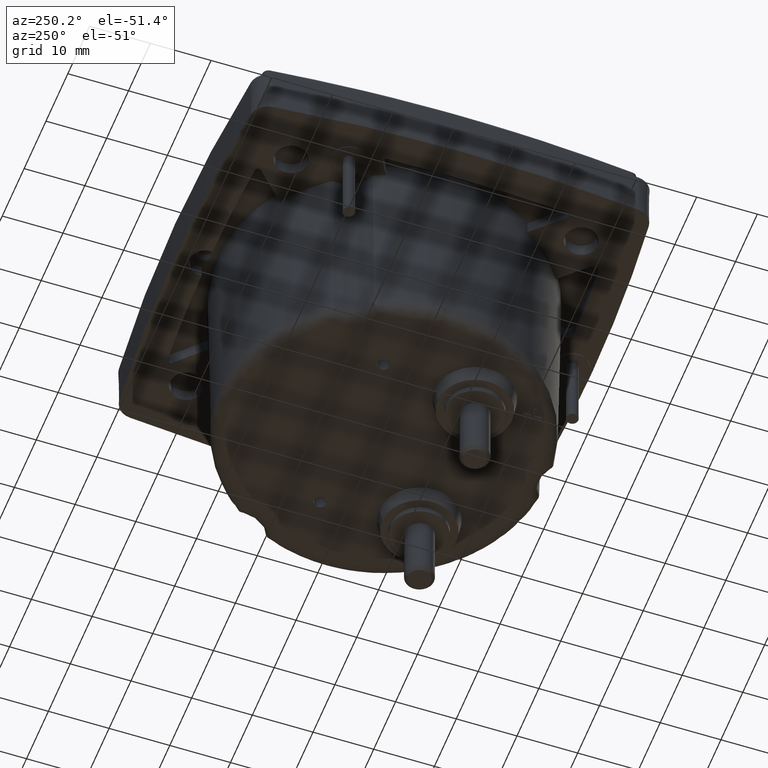
[diagram: clean part render]
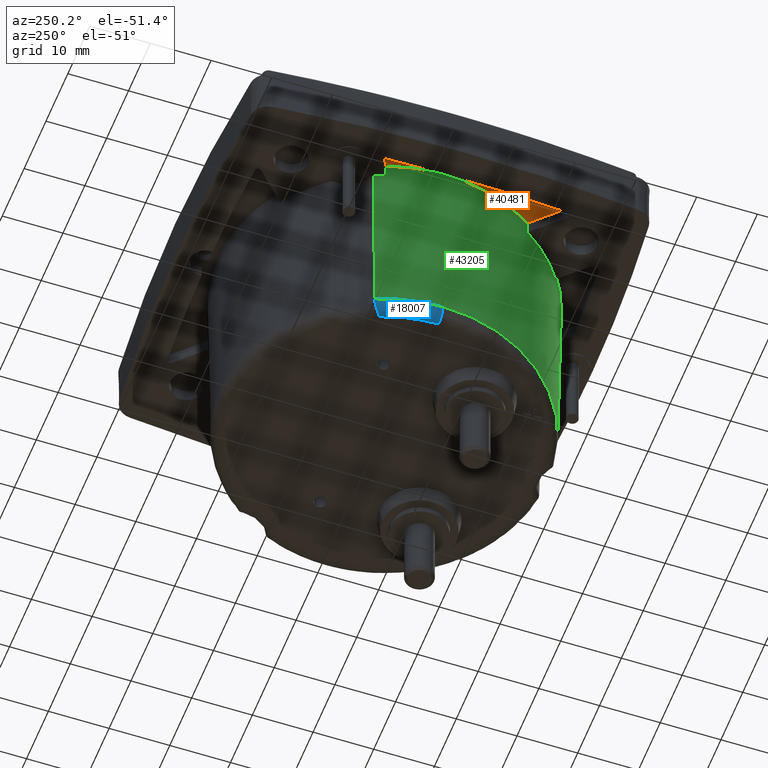
[diagram: same view with three faces highlighted in distinct colors, each labeled with its STEP entity id]
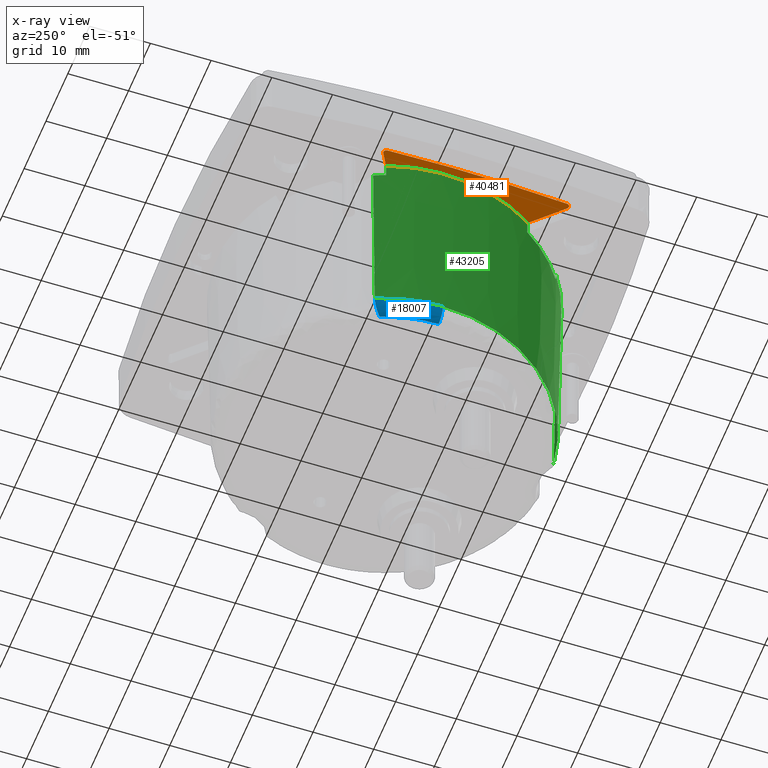
[diagram: x-ray of the same camera — body ghosted, the three highlighted faces saturated]
A machine part, auxiliary view with three faces highlighted in distinct colors.
The next image is the same camera in x-ray (body ghosted, the three faces saturated) — at least one of them is partly hidden behind the body in this view.
Their STEP definitions:

[orange] entity #40481 — the highlighted planar face has unit normal (0, 0, -1).
#1308 = VERTEX_POINT ( 'NONE', #28525 ) ;
#1317 = DIRECTION ( 'NONE',  ( 0.000000000000000000, -1.000000000000000000, -7.880104972847839846E-18 ) ) ;
#1549 = CARTESIAN_POINT ( 'NONE',  ( -0.5484864308872661187, -1.001285960488588200, 0.07086574803150351431 ) ) ;
#2304 = ORIENTED_EDGE ( 'NONE', *, *, #38888, .F. ) ;
#3442 = B_SPLINE_CURVE_WITH_KNOTS ( 'NONE', 3,
 ( #33978, #18755, #11151, #3518, #33721, #26119 ),
 .UNSPECIFIED., .F., .F.,
 ( 4, 2, 4 ),
 ( 1.854207614396248247E-17, 0.0005127997541172563600, 0.001025599508234494289 ),
 .UNSPECIFIED. ) ;
#3518 = CARTESIAN_POINT ( 'NONE',  ( -0.5544709437296143628, 0.1997792198089891613, 0.07086574803150354207 ) ) ;
#3742 = AXIS2_PLACEMENT_3D ( 'NONE', #18749, #37641, #10881 ) ;
#4223 = EDGE_LOOP ( 'NONE', ( #25633, #2304, #19690, #40869, #15446, #39649 ) ) ;
#5315 = CIRCLE ( 'NONE', #14697, 1.083364372634185058 ) ;
#5474 = CARTESIAN_POINT ( 'NONE',  ( -0.5498344486419323163, -0.9976643888627670931, 0.07086574803150355595 ) ) ;
#6533 = EDGE_CURVE ( 'NONE', #11114, #26664, #3442, .T. ) ;
#7023 = DIRECTION ( 'NONE',  ( 0.7071067811865460184, 0.7071067811865490160, 0.000000000000000000 ) ) ;
#7216 = FACE_OUTER_BOUND ( 'NONE', #4223, .T. ) ;
#8937 = CARTESIAN_POINT ( 'NONE',  ( -0.5439760529534027889, -1.007327524298232024, 0.07086574803150354207 ) ) ;
#10881 = DIRECTION ( 'NONE',  ( 0.000000000000000000, 1.000000000000000000, 0.000000000000000000 ) ) ;
#11114 = VERTEX_POINT ( 'NONE', #37734 ) ;
#11143 = PLANE ( 'NONE',  #3742 ) ;
#11151 = CARTESIAN_POINT ( 'NONE',  ( -0.5663780916336117466, 0.1931820739031400169, 0.07086574803150355595 ) ) ;
#12330 = VECTOR ( 'NONE', #7023, 39.37007874015748143 ) ;
#12365 = CARTESIAN_POINT ( 'NONE',  ( -0.5338548579994480958, -1.012275883339463833, 0.07086574803150354207 ) ) ;
#12578 = CARTESIAN_POINT ( 'NONE',  ( 10.79680659032818824, -0.2090036857513905555, 0.07086574803158346425 ) ) ;
#12624 = CARTESIAN_POINT ( 'NONE',  ( -0.5165394616096243841, -1.006447748541958731, 0.07086574803150354207 ) ) ;
#12695 = CARTESIAN_POINT ( 'NONE',  ( -0.5165394616096243841, -1.006447748541958731, 0.07086574803150354207 ) ) ;
#13291 = DIRECTION ( 'NONE',  ( 0.000000000000000000, 0.000000000000000000, -1.000000000000000000 ) ) ;
#13853 = VERTEX_POINT ( 'NONE', #41515 ) ;
#14045 = EDGE_CURVE ( 'NONE', #16926, #46848, #29594, .T. ) ;
#14697 = AXIS2_PLACEMENT_3D ( 'NONE', #34967, #38880, #1317 ) ;
#14972 = B_SPLINE_CURVE_WITH_KNOTS ( 'NONE', 3,
 ( #12624, #31980, #24136, #42569, #12365, #31519, #8937, #1549, #5474, #16562 ),
 .UNSPECIFIED., .F., .F.,
 ( 4, 2, 2, 2, 4 ),
 ( 2.464284451092446893E-16, 0.0002844150173273506479, 0.0005688300346544548566, 0.0008532450519815590112, 0.001137660069308663166 ),
 .UNSPECIFIED. ) ;
#15446 = ORIENTED_EDGE ( 'NONE', *, *, #24773, .T. ) ;
#16562 = CARTESIAN_POINT ( 'NONE',  ( -0.5500957227438094677, -0.9938872019942893710, 0.07086574803154351010 ) ) ;
#16669 = EDGE_CURVE ( 'NONE', #13853, #26664, #30671, .T. ) ;
#16926 = VERTEX_POINT ( 'NONE', #12695 ) ;
#17176 = AXIS2_PLACEMENT_3D ( 'NONE', #12578, #13291, #19940 ) ;
#18749 = CARTESIAN_POINT ( 'NONE',  ( 0.5704286375722834590, -0.2090036857513889734, 0.07086574803150354207 ) ) ;
#18755 = CARTESIAN_POINT ( 'NONE',  ( -0.5703238249410559346, 0.1867575558135309011, 0.07086574803150355595 ) ) ;
#19690 = ORIENTED_EDGE ( 'NONE', *, *, #14045, .F. ) ;
#19940 = DIRECTION ( 'NONE',  ( 0.000000000000000000, 1.000000000000000000, 0.000000000000000000 ) ) ;
#23836 = CARTESIAN_POINT ( 'NONE',  ( -0.3265854261738594388, -0.8164937131061928977, 0.07086574803151023116 ) ) ;
#24136 = CARTESIAN_POINT ( 'NONE',  ( -0.5226207516346231818, -1.010969296062454115, 0.07086574803150312574 ) ) ;
#24773 = EDGE_CURVE ( 'NONE', #1308, #11114, #37515, .T. ) ;
#25633 = ORIENTED_EDGE ( 'NONE', *, *, #16669, .F. ) ;
#26119 = CARTESIAN_POINT ( 'NONE',  ( -0.5410423381641945584, 0.1963089954766004119, 0.07086574803150354207 ) ) ;
#26664 = VERTEX_POINT ( 'NONE', #38213 ) ;
#28525 = CARTESIAN_POINT ( 'NONE',  ( -0.5500957227438094677, -0.9938872019942893710, 0.07086574803154351010 ) ) ;
#29594 = LINE ( 'NONE', #39040, #12330 ) ;
#30671 = LINE ( 'NONE', #45644, #36789 ) ;
#31519 = CARTESIAN_POINT ( 'NONE',  ( -0.5408519150594789382, -1.009659392693849300, 0.07086574803150354207 ) ) ;
#31980 = CARTESIAN_POINT ( 'NONE',  ( -0.5192167165117855809, -1.009125003444103719, 0.07086574803150352819 ) ) ;
#33721 = CARTESIAN_POINT ( 'NONE',  ( -0.5469542898432218081, 0.1997222623699150268, 0.07086574803150354207 ) ) ;
#33978 = CARTESIAN_POINT ( 'NONE',  ( -0.5705572608831441794, 0.1799350120433768074, 0.07086574803154351010 ) ) ;
#34600 = DIRECTION ( 'NONE',  ( -0.8660254037844383745, 0.5000000000000003331, 0.000000000000000000 ) ) ;
#34967 = CARTESIAN_POINT ( 'NONE',  ( 0.5704286375722834590, -0.2090036857513889734, 0.07086574803151693414 ) ) ;
#36789 = VECTOR ( 'NONE', #34600, 39.37007874015748143 ) ;
#37515 = CIRCLE ( 'NONE', #17176, 11.37401574803149629 ) ;
#37641 = DIRECTION ( 'NONE',  ( 0.000000000000000000, 0.000000000000000000, -1.000000000000000000 ) ) ;
#37734 = CARTESIAN_POINT ( 'NONE',  ( -0.5705572608831441794, 0.1799350120433768074, 0.07086574803154351010 ) ) ;
#38213 = CARTESIAN_POINT ( 'NONE',  ( -0.5410423381641945584, 0.1963089954766004119, 0.07086574803150354207 ) ) ;
#38880 = DIRECTION ( 'NONE',  ( -0.000000000000000000, 3.940052486423924545E-18, -1.000000000000000000 ) ) ;
#38888 = EDGE_CURVE ( 'NONE', #46848, #13853, #5315, .T. ) ;
#39040 = CARTESIAN_POINT ( 'NONE',  ( -0.5152782625131496763, -1.005186549445484134, 0.07086574803150354207 ) ) ;
#39649 = ORIENTED_EDGE ( 'NONE', *, *, #6533, .T. ) ;
#40481 = ADVANCED_FACE ( 'NONE', ( #7216 ), #11143, .T. ) ;
#40869 = ORIENTED_EDGE ( 'NONE', *, *, #41872, .T. ) ;
#41515 = CARTESIAN_POINT ( 'NONE',  ( -0.4532504019335283907, 0.1456222974612318977, 0.07086574803151594881 ) ) ;
#41872 = EDGE_CURVE ( 'NONE', #16926, #1308, #14972, .T. ) ;
#42569 = CARTESIAN_POINT ( 'NONE',  ( -0.5299305541650248808, -1.012559568695174717, 0.07086574803150308410 ) ) ;
#45644 = CARTESIAN_POINT ( 'NONE',  ( 0.1697988570692956778, -0.2140953599425330922, 0.07086574803150354207 ) ) ;
#46848 = VERTEX_POINT ( 'NONE', #23836 ) ;

[blue] entity #18007 — the highlighted face is a freeform B-spline surface patch.
#503 = CARTESIAN_POINT ( 'NONE',  ( -0.3658197169492359846, 0.1669715321241469486, -1.271087299831307638 ) ) ;
#2577 = ORIENTED_EDGE ( 'NONE', *, *, #6843, .T. ) ;
#2871 = CARTESIAN_POINT ( 'NONE',  ( -0.4120555090319650282, -0.08598288579292574785, -1.275590944881889843 ) ) ;
#2934 = CARTESIAN_POINT ( 'NONE',  ( -0.3856862948196293495, 0.05296008595630000843, -1.275590944881890287 ) ) ;
#3651 = CARTESIAN_POINT ( 'NONE',  ( -0.4615288616103075392, 0.07374001960169822290, -1.243707193137567835 ) ) ;
#4212 = CARTESIAN_POINT ( 'NONE',  ( -0.3684291429872016410, 0.1691535364669489172, -1.269787132529899720 ) ) ;
#4421 = ORIENTED_EDGE ( 'NONE', *, *, #32000, .F. ) ;
#4481 = AXIS2_PLACEMENT_3D ( 'NONE', #17557, #20766, #43351 ) ;
#4700 = CARTESIAN_POINT ( 'NONE',  ( -0.4026604149188213744, 0.1988198912574607735, -1.227319208411610907 ) ) ;
#4756 =( BOUNDED_SURFACE ( )  B_SPLINE_SURFACE ( 3, 3, ( 
 ( #48338, #10338, #2934, #6868 ),
 ( #44920, #22578, #18910, #40274 ),
 ( #32908, #14014, #3651, #36566 ),
 ( #21857, #25304, #11293, #48110 ) ),
 .UNSPECIFIED., .F., .F., .T. ) 
 B_SPLINE_SURFACE_WITH_KNOTS ( ( 4, 4 ),
 ( 4, 4 ),
 ( 0.000000000000000000, 1.000000000000000000 ),
 ( 0.000000000000000000, 1.000000000000000000 ),
 .UNSPECIFIED. ) 
 GEOMETRIC_REPRESENTATION_ITEM ( )  RATIONAL_B_SPLINE_SURFACE ( (
 ( 1.000000000000000000, 0.9866256603221237320, 0.9866256603221237320, 1.000000000000000000),
 ( 0.8088336327694334305, 0.7980160170218844051, 0.7980160170218844051, 0.8088336327694334305),
 ( 0.8088336327694334305, 0.7980160170218844051, 0.7980160170218844051, 0.8088336327694334305),
 ( 1.000000000000000000, 0.9866256603221237320, 0.9866256603221237320, 1.000000000000000000) ) ) 
 REPRESENTATION_ITEM ( '' )  SURFACE ( )  );
#4955 = CARTESIAN_POINT ( 'NONE',  ( -0.3731959262905323871, 0.1731568621864557900, -1.267101541288571998 ) ) ;
#5050 =( BOUNDED_CURVE ( )  B_SPLINE_CURVE ( 3, ( #21794, #40443, #2871, #6586 ),
 .UNSPECIFIED., .F., .T. ) 
 B_SPLINE_CURVE_WITH_KNOTS ( ( 4, 4 ),
 ( 0.000000000000000000, 0.2081565305515306330 ),
 .UNSPECIFIED. ) 
 CURVE ( )  GEOMETRIC_REPRESENTATION_ITEM ( )  RATIONAL_B_SPLINE_CURVE ( ( 1.000000000000000000, 0.9884113228496753667, 0.9884113228496753667, 1.000000000000000000 ) ) 
 REPRESENTATION_ITEM ( '' )  );
#6316 = CIRCLE ( 'NONE', #11129, 0.07874015748031495954 ) ;
#6586 = CARTESIAN_POINT ( 'NONE',  ( -0.4120637148025882990, -0.2090036892705135485, -1.275590944881889843 ) ) ;
#6825 = VERTEX_POINT ( 'NONE', #29207 ) ;
#6843 = EDGE_CURVE ( 'NONE', #18613, #10567, #6316, .T. ) ;
#6868 = CARTESIAN_POINT ( 'NONE',  ( -0.3340058786091467113, 0.1747583548876210369, -1.275590944881889843 ) ) ;
#7570 = DIRECTION ( 'NONE',  ( 0.000000000000000000, 1.000000000000000000, 0.000000000000000000 ) ) ;
#7645 = CARTESIAN_POINT ( 'NONE',  ( -0.3699765718889357347, 0.1704493531523877670, -1.268982027594237172 ) ) ;
#7901 = CARTESIAN_POINT ( 'NONE',  ( -0.4041421490826709317, 0.2001547632005641064, -1.222397941859409531 ) ) ;
#8636 = CARTESIAN_POINT ( 'NONE',  ( -0.3828604221289570453, 0.1813851772941228735, -1.259744012333577245 ) ) ;
#9569 = VERTEX_POINT ( 'NONE', #13997 ) ;
#9832 = CARTESIAN_POINT ( 'NONE',  ( -0.3547884123361890185, 0.1578594490655102489, -1.274703261159810808 ) ) ;
#10338 = CARTESIAN_POINT ( 'NONE',  ( -0.4120555090485985561, -0.07669464120511844396, -1.275590944881890287 ) ) ;
#10466 = EDGE_CURVE ( 'NONE', #9569, #6825, #11884, .T. ) ;
#10567 = VERTEX_POINT ( 'NONE', #46444 ) ;
#11129 = AXIS2_PLACEMENT_3D ( 'NONE', #18400, #7570, #30667 ) ;
#11293 = CARTESIAN_POINT ( 'NONE',  ( -0.4623014487714700582, 0.07395169901371705101, -1.198224992632851649 ) ) ;
#11340 = CARTESIAN_POINT ( 'NONE',  ( -0.4024404605251670208, 0.1986219604866949207, -1.227975534132336843 ) ) ;
#11884 = B_SPLINE_CURVE_WITH_KNOTS ( 'NONE', 3,
 ( #42013, #26301, #26805, #12084, #41786, #7901, #18966, #23368, #4700, #11340, #22888, #16253, #33936, #34672, #30977, #45937, #12318, #27294, #23128, #42265, #41273, #8636, #23625, #38586, #4955, #37851, #7645, #22632, #34163, #4212, #19200, #503, #15520, #9832, #39768, #20876 ),
 .UNSPECIFIED., .F., .F.,
 ( 4, 2, 2, 1, 2, 2, 2, 2, 1, 1, 2, 2, 2, 2, 1, 1, 1, 2, 2, 2, 4 ),
 ( 0.000000000000000000, 0.1249999999999994449, 0.1875000000000007772, 0.2187499999999999167, 0.2343749999999996947, 0.2499999999999995004, 0.3750000000000059397, 0.4375000000000123235, 0.4687500000000133227, 0.4843750000000164868, 0.4921875000000176525, 0.5000000000000187628, 0.6249999999999980016, 0.6874999999999894529, 0.7187499999999850120, 0.7343749999999816813, 0.7421874999999793499, 0.7460937499999790168, 0.7499999999999786837, 0.8749999999999893419, 1.000000000000000000 ),
 .UNSPECIFIED. ) ;
#12084 = CARTESIAN_POINT ( 'NONE',  ( -0.4056330063976635314, 0.2015015078224840217, -1.216128162815776514 ) ) ;
#12318 = CARTESIAN_POINT ( 'NONE',  ( -0.3897161072819632088, 0.1873460943821270153, -1.251956188027070205 ) ) ;
#13997 = CARTESIAN_POINT ( 'NONE',  ( -0.4074690687018535096, 0.2031706048745094695, -1.198224992726122151 ) ) ;
#14014 = CARTESIAN_POINT ( 'NONE',  ( -0.4899897792774556837, -0.06619939925454285112, -1.243707193137567835 ) ) ;
#15520 = CARTESIAN_POINT ( 'NONE',  ( -0.3627097932493704713, 0.1643684774434174822, -1.272450573035262877 ) ) ;
#16253 = CARTESIAN_POINT ( 'NONE',  ( -0.3987916673983767368, 0.1953452734643602307, -1.237386482606241067 ) ) ;
#17557 = CARTESIAN_POINT ( 'NONE',  ( 0.5704286375722834590, -0.2090036857513889734, -1.198224992633279529 ) ) ;
#18007 = ADVANCED_FACE ( 'NONE', ( #44197 ), #4756, .T. ) ;
#18400 = CARTESIAN_POINT ( 'NONE',  ( -0.4120555088116457099, -0.2090036857513889734, -1.196850787401574800 ) ) ;
#18613 = VERTEX_POINT ( 'NONE', #24647 ) ;
#18910 = CARTESIAN_POINT ( 'NONE',  ( -0.4299545259052373058, 0.06508903864716748811, -1.275590944881890509 ) ) ;
#18966 = CARTESIAN_POINT ( 'NONE',  ( -0.4036265986669589356, 0.1996898711187831965, -1.224258371492829234 ) ) ;
#19200 = CARTESIAN_POINT ( 'NONE',  ( -0.3682414236198257029, 0.1689965337712552862, -1.269881253000058052 ) ) ;
#20766 = DIRECTION ( 'NONE',  ( 0.000000000000000000, 0.000000000000000000, 1.000000000000000000 ) ) ;
#20876 = CARTESIAN_POINT ( 'NONE',  ( -0.3443351129542810973, 0.1494407013135086726, -1.275590944881889843 ) ) ;
#21794 = CARTESIAN_POINT ( 'NONE',  ( -0.3443351129542810973, 0.1494407013135086726, -1.275590944881889843 ) ) ;
#21857 = CARTESIAN_POINT ( 'NONE',  ( -0.4907836737845899799, -0.2090036876519321130, -1.198224992632851427 ) ) ;
#22578 = CARTESIAN_POINT ( 'NONE',  ( -0.4575446377789214036, -0.07056871725993156541, -1.275590944881890509 ) ) ;
#22632 = CARTESIAN_POINT ( 'NONE',  ( -0.3690777968805665776, 0.1696963759886957468, -1.269455905897367121 ) ) ;
#22888 = CARTESIAN_POINT ( 'NONE',  ( -0.4007050099651159325, 0.1970607759873081177, -1.232989964613449674 ) ) ;
#23128 = CARTESIAN_POINT ( 'NONE',  ( -0.3887695706373421323, 0.1865203512152656951, -1.253139182441469046 ) ) ;
#23368 = CARTESIAN_POINT ( 'NONE',  ( -0.4030544120236066452, 0.1991745765218070341, -1.226097913153450403 ) ) ;
#23625 = CARTESIAN_POINT ( 'NONE',  ( -0.3778136410806265943, 0.1770693849683702137, -1.263913326060818632 ) ) ;
#24647 = CARTESIAN_POINT ( 'NONE',  ( -0.4120637148025882990, -0.2090036892705135485, -1.275590944881889843 ) ) ;
#25304 = CARTESIAN_POINT ( 'NONE',  ( -0.4907836740405321363, -0.06609248714004797853, -1.198224992632851649 ) ) ;
#26301 = CARTESIAN_POINT ( 'NONE',  ( -0.4073989749069315547, 0.2031068222660091238, -1.203344648897886282 ) ) ;
#26549 = EDGE_CURVE ( 'NONE', #6825, #18613, #5050, .T. ) ;
#26805 = CARTESIAN_POINT ( 'NONE',  ( -0.4069361621478025381, 0.2026829338202908171, -1.208498649957800097 ) ) ;
#27294 = CARTESIAN_POINT ( 'NONE',  ( -0.3891500119340796093, 0.1868521410216393841, -1.252667391264901564 ) ) ;
#29207 = CARTESIAN_POINT ( 'NONE',  ( -0.3443351129542810973, 0.1494407013135086726, -1.275590944881889843 ) ) ;
#29217 = EDGE_LOOP ( 'NONE', ( #47704, #2577, #4421, #33312 ) ) ;
#30667 = DIRECTION ( 'NONE',  ( -1.000000000000000000, 0.000000000000000000, 0.000000000000000000 ) ) ;
#30977 = CARTESIAN_POINT ( 'NONE',  ( -0.3920544992217404601, 0.1893926495022751899, -1.248791262068911667 ) ) ;
#32000 = EDGE_CURVE ( 'NONE', #9569, #10567, #48379, .T. ) ;
#32908 = CARTESIAN_POINT ( 'NONE',  ( -0.4899897790217050964, -0.2090036876505103058, -1.243707193137568057 ) ) ;
#33312 = ORIENTED_EDGE ( 'NONE', *, *, #10466, .T. ) ;
#33936 = CARTESIAN_POINT ( 'NONE',  ( -0.3953312562295521193, 0.1922771321900653696, -1.243717059405428760 ) ) ;
#34163 = CARTESIAN_POINT ( 'NONE',  ( -0.3686890742713490599, 0.1693710241380000370, -1.269655160987379183 ) ) ;
#34672 = CARTESIAN_POINT ( 'NONE',  ( -0.3940797191091333085, 0.1911721253992845482, -1.245782923913074214 ) ) ;
#36566 = CARTESIAN_POINT ( 'NONE',  ( -0.4057489639615338706, 0.2051997769518888459, -1.243707193137568057 ) ) ;
#37851 = CARTESIAN_POINT ( 'NONE',  ( -0.3717409674802880093, 0.1719304496526597448, -1.267999543603684831 ) ) ;
#38586 = CARTESIAN_POINT ( 'NONE',  ( -0.3760285265827479351, 0.1755512113862305046, -1.265240537520723629 ) ) ;
#39768 = CARTESIAN_POINT ( 'NONE',  ( -0.3499646527348923009, 0.1539488305952299296, -1.275590944881890509 ) ) ;
#40274 = CARTESIAN_POINT ( 'NONE',  ( -0.3758813004937912039, 0.1925265814065733050, -1.275590944881890731 ) ) ;
#40443 = CARTESIAN_POINT ( 'NONE',  ( -0.3892173800426015906, 0.03489944343516027808, -1.275590944881889843 ) ) ;
#41273 = CARTESIAN_POINT ( 'NONE',  ( -0.3858114077310544343, 0.1839429783627172243, -1.256716582951223016 ) ) ;
#41786 = CARTESIAN_POINT ( 'NONE',  ( -0.4050973928179291694, 0.2010169300873043408, -1.218654294163985297 ) ) ;
#42013 = CARTESIAN_POINT ( 'NONE',  ( -0.4074690687018535096, 0.2031706048745094695, -1.198224992726122151 ) ) ;
#42265 = CARTESIAN_POINT ( 'NONE',  ( -0.3885453892093295170, 0.1863249505552888596, -1.253413101475066016 ) ) ;
#43351 = DIRECTION ( 'NONE',  ( -1.000000000000000000, 0.000000000000000000, -3.861406380747935715E-16 ) ) ;
#44197 = FACE_OUTER_BOUND ( 'NONE', #29217, .T. ) ;
#44920 = CARTESIAN_POINT ( 'NONE',  ( -0.4575446375309959457, -0.2090036875924037585, -1.275590944881890731 ) ) ;
#45937 = CARTESIAN_POINT ( 'NONE',  ( -0.3910049508335347590, 0.1884724411282825973, -1.250272794811555732 ) ) ;
#46444 = CARTESIAN_POINT ( 'NONE',  ( -0.4907836737968483964, -0.2090036857513889734, -1.198224992633279973 ) ) ;
#47704 = ORIENTED_EDGE ( 'NONE', *, *, #26549, .T. ) ;
#48110 = CARTESIAN_POINT ( 'NONE',  ( -0.4064797908439944929, 0.2055098752627661229, -1.198224992632851427 ) ) ;
#48338 = CARTESIAN_POINT ( 'NONE',  ( -0.4120555088116441556, -0.2090036875109365089, -1.275590944881889843 ) ) ;
#48379 = CIRCLE ( 'NONE', #4481, 1.061212311381397821 ) ;

[green] entity #43205 — the highlighted conical surface has half-angle 1 deg.
#498 = DIRECTION ( 'NONE',  ( -1.000000000000000000, 0.000000000000000000, -3.861406380747935715E-16 ) ) ;
#692 = DIRECTION ( 'NONE',  ( 8.838051241689336048E-16, -1.000000000000000000, -3.945558590039882935E-18 ) ) ;
#1112 = CARTESIAN_POINT ( 'NONE',  ( 0.4443990408350574906, -1.283490264756248056, -0.01574842519613068800 ) ) ;
#1317 = DIRECTION ( 'NONE',  ( 0.000000000000000000, -1.000000000000000000, -7.880104972847839846E-18 ) ) ;
#1328 = EDGE_CURVE ( 'NONE', #13853, #33362, #35964, .T. ) ;
#2297 = B_SPLINE_CURVE_WITH_KNOTS ( 'NONE', 3,
 ( #19667, #46164, #15998, #30958 ),
 .UNSPECIFIED., .F., .F.,
 ( 4, 4 ),
 ( 0.000000000000000000, 1.000000000000000000 ),
 .UNSPECIFIED. ) ;
#2525 = CARTESIAN_POINT ( 'NONE',  ( -0.4231188342421803306, 0.2190947713427397747, -0.01574842519683218589 ) ) ;
#2891 = CIRCLE ( 'NONE', #29563, 1.081852516618506010 ) ;
#2981 = CARTESIAN_POINT ( 'NONE',  ( 0.5704286375722834590, -0.2090036857513889734, -0.01574842519686553421 ) ) ;
#3286 = ORIENTED_EDGE ( 'NONE', *, *, #39545, .T. ) ;
#3470 = DIRECTION ( 'NONE',  ( 0.000000000000000000, -1.000000000000000000, -3.945558590039882935E-18 ) ) ;
#3529 = VERTEX_POINT ( 'NONE', #12009 ) ;
#4150 = DIRECTION ( 'NONE',  ( -0.000000000000000000, 3.940052486423924545E-18, -1.000000000000000000 ) ) ;
#4481 = AXIS2_PLACEMENT_3D ( 'NONE', #17557, #20766, #43351 ) ;
#4881 = ORIENTED_EDGE ( 'NONE', *, *, #38888, .T. ) ;
#5304 = CARTESIAN_POINT ( 'NONE',  ( -0.03660999083042992125, -1.104497388319826801, -0.01574842519685423423 ) ) ;
#5314 = CARTESIAN_POINT ( 'NONE',  ( -0.3265854261738594388, -0.8164937131061928977, 0.07086574803151023116 ) ) ;
#5315 = CIRCLE ( 'NONE', #14697, 1.083364372634185058 ) ;
#6553 = B_SPLINE_CURVE_WITH_KNOTS ( 'NONE', 3,
 ( #9493, #16385, #24476, #5314 ),
 .UNSPECIFIED., .F., .F.,
 ( 4, 4 ),
 ( 0.000000000000000000, 1.000000000000000000 ),
 .UNSPECIFIED. ) ;
#6702 = ORIENTED_EDGE ( 'NONE', *, *, #38603, .T. ) ;
#6865 = AXIS2_PLACEMENT_3D ( 'NONE', #2981, #25819, #3470 ) ;
#7033 = ORIENTED_EDGE ( 'NONE', *, *, #36891, .T. ) ;
#7728 = ORIENTED_EDGE ( 'NONE', *, *, #48095, .T. ) ;
#8189 = CARTESIAN_POINT ( 'NONE',  ( -0.4231188342421803306, 0.2190947713427397747, -0.01574842519683218589 ) ) ;
#8573 = CARTESIAN_POINT ( 'NONE',  ( 0.4443990408350574906, -1.283490264756248056, -0.01574842519613068800 ) ) ;
#8658 = LINE ( 'NONE', #16039, #11131 ) ;
#8770 = ORIENTED_EDGE ( 'NONE', *, *, #10688, .T. ) ;
#9493 = CARTESIAN_POINT ( 'NONE',  ( -0.3250650649965409755, -0.8160423141543701187, -0.01574842519686549258 ) ) ;
#9569 = VERTEX_POINT ( 'NONE', #13997 ) ;
#9853 = CARTESIAN_POINT ( 'NONE',  ( -0.4521934377328110100, 0.1455941734361101136, 0.01312296587926133594 ) ) ;
#10072 = DIRECTION ( 'NONE',  ( -0.000000000000000000, -0.000000000000000000, -1.000000000000000000 ) ) ;
#10442 = FACE_OUTER_BOUND ( 'NONE', #16045, .T. ) ;
#10567 = VERTEX_POINT ( 'NONE', #46444 ) ;
#10688 = EDGE_CURVE ( 'NONE', #27346, #28469, #12827, .T. ) ;
#10737 = VERTEX_POINT ( 'NONE', #8573 ) ;
#11131 = VECTOR ( 'NONE', #31237, 39.37007874015748854 ) ;
#12009 = CARTESIAN_POINT ( 'NONE',  ( 0.4384331776564109884, -1.261975085341303204, -1.198224992633031505 ) ) ;
#12827 = CIRCLE ( 'NONE', #21419, 1.082677165354330784 ) ;
#12972 = EDGE_CURVE ( 'NONE', #10567, #3529, #27210, .T. ) ;
#13853 = VERTEX_POINT ( 'NONE', #41515 ) ;
#13895 = AXIS2_PLACEMENT_3D ( 'NONE', #16010, #27040, #498 ) ;
#13997 = CARTESIAN_POINT ( 'NONE',  ( -0.4074690687018535096, 0.2031706048745094695, -1.198224992726122151 ) ) ;
#14697 = AXIS2_PLACEMENT_3D ( 'NONE', #34967, #38880, #1317 ) ;
#15104 = DIRECTION ( 'NONE',  ( 0.000000000000000000, -3.940052486423924545E-18, 1.000000000000000000 ) ) ;
#15998 = CARTESIAN_POINT ( 'NONE',  ( -0.03669213054096689963, -1.104773795392971714, -3.937007939001812500E-07 ) ) ;
#16010 = CARTESIAN_POINT ( 'NONE',  ( 0.5704286375722834590, -0.2090036857513889734, -1.198224992633279529 ) ) ;
#16039 = CARTESIAN_POINT ( 'NONE',  ( 0.3660478055955421195, -1.272215009948129749, 0.03149566929134598597 ) ) ;
#16045 = EDGE_LOOP ( 'NONE', ( #47681, #28102, #3286, #21340, #42953, #32541, #45213, #34953, #8770, #7728, #7033, #6702, #4881 ) ) ;
#16375 = CARTESIAN_POINT ( 'NONE',  ( 0.3664600985620346529, -1.271454485933120049, -0.01574842519685427239 ) ) ;
#16385 = CARTESIAN_POINT ( 'NONE',  ( -0.3255717561879257205, -0.8161929849186303487, 0.01312296587926133594 ) ) ;
#17516 = VERTEX_POINT ( 'NONE', #2525 ) ;
#17557 = CARTESIAN_POINT ( 'NONE',  ( 0.5704286375722834590, -0.2090036857513889734, -1.198224992633279529 ) ) ;
#19097 = CARTESIAN_POINT ( 'NONE',  ( 0.5704286375722834590, -0.2090036857513889734, -0.01574842519686549258 ) ) ;
#19667 = CARTESIAN_POINT ( 'NONE',  ( -0.03685622736625487894, -1.105326695160535388, 0.03149566929134822724 ) ) ;
#20463 = CARTESIAN_POINT ( 'NONE',  ( -0.4179341445704603530, 0.2137409001159200073, -0.4099072810090034769 ) ) ;
#20766 = DIRECTION ( 'NONE',  ( 0.000000000000000000, 0.000000000000000000, 1.000000000000000000 ) ) ;
#21340 = ORIENTED_EDGE ( 'NONE', *, *, #32000, .T. ) ;
#21419 = AXIS2_PLACEMENT_3D ( 'NONE', #33365, #10072, #48329 ) ;
#22204 = B_SPLINE_CURVE_WITH_KNOTS ( 'NONE', 3,
 ( #8189, #20463, #35429, #23160 ),
 .UNSPECIFIED., .F., .F.,
 ( 4, 4 ),
 ( 0.000000000000000000, 1.000000000000000000 ),
 .UNSPECIFIED. ) ;
#22352 = CARTESIAN_POINT ( 'NONE',  ( 0.3660478055955421195, -1.272215009948129749, 0.03149566929133736093 ) ) ;
#23160 = CARTESIAN_POINT ( 'NONE',  ( -0.4074690687018535096, 0.2031706048745094695, -1.198224992726122151 ) ) ;
#23469 = CARTESIAN_POINT ( 'NONE',  ( 0.4423547971743377327, -1.276323256175724730, -0.4099072810090028662 ) ) ;
#23550 = CARTESIAN_POINT ( 'NONE',  ( -0.4516650151613243458, 0.1455797779838055028, -0.01574842519685425504 ) ) ;
#23836 = CARTESIAN_POINT ( 'NONE',  ( -0.3265854261738594388, -0.8164937131061928977, 0.07086574803151023116 ) ) ;
#24476 = CARTESIAN_POINT ( 'NONE',  ( -0.3260785432906723180, -0.8163434512592434578, 0.04199435695538811242 ) ) ;
#24606 = CARTESIAN_POINT ( 'NONE',  ( -0.4527219000383814751, 0.1456083466064929111, 0.04199435695538811242 ) ) ;
#25819 = DIRECTION ( 'NONE',  ( -0.000000000000000000, 3.940052486423924545E-18, -1.000000000000000000 ) ) ;
#25876 = CARTESIAN_POINT ( 'NONE',  ( 0.5704286375722834590, -0.2090036857513889734, 0.07086574803151575452 ) ) ;
#26679 = CONICAL_SURFACE ( 'NONE', #46312, 1.083364372634185058, 0.01745329250000015112 ) ;
#27040 = DIRECTION ( 'NONE',  ( 0.000000000000000000, 0.000000000000000000, 1.000000000000000000 ) ) ;
#27210 = CIRCLE ( 'NONE', #13895, 1.061212311381397821 ) ;
#27346 = VERTEX_POINT ( 'NONE', #22352 ) ;
#28030 = CARTESIAN_POINT ( 'NONE',  ( -0.4532504019335283907, 0.1456222974612318977, 0.07086574803151594881 ) ) ;
#28102 = ORIENTED_EDGE ( 'NONE', *, *, #34772, .T. ) ;
#28469 = VERTEX_POINT ( 'NONE', #40487 ) ;
#29563 = AXIS2_PLACEMENT_3D ( 'NONE', #38256, #4150, #692 ) ;
#29775 = CIRCLE ( 'NONE', #47043, 1.081852516618506010 ) ;
#30622 = DIRECTION ( 'NONE',  ( -0.000000000000000000, 3.940052486423924545E-18, -1.000000000000000000 ) ) ;
#30958 = CARTESIAN_POINT ( 'NONE',  ( -0.03660999083042992125, -1.104497388319826801, -0.01574842519685423423 ) ) ;
#31237 = DIRECTION ( 'NONE',  ( 0.008725405116444134163, 0.01609506024895585724, -0.9998323941247035940 ) ) ;
#32000 = EDGE_CURVE ( 'NONE', #9569, #10567, #48379, .T. ) ;
#32527 = EDGE_CURVE ( 'NONE', #10737, #42941, #40568, .T. ) ;
#32541 = ORIENTED_EDGE ( 'NONE', *, *, #40318, .T. ) ;
#33362 = VERTEX_POINT ( 'NONE', #23550 ) ;
#33365 = CARTESIAN_POINT ( 'NONE',  ( 0.5704286375722834590, -0.2090036857513889734, 0.03149566929134626353 ) ) ;
#33819 = CARTESIAN_POINT ( 'NONE',  ( -0.3250650649965409755, -0.8160423141543701187, -0.01574842519686549258 ) ) ;
#34772 = EDGE_CURVE ( 'NONE', #33362, #17516, #29775, .T. ) ;
#34953 = ORIENTED_EDGE ( 'NONE', *, *, #44910, .F. ) ;
#34967 = CARTESIAN_POINT ( 'NONE',  ( 0.5704286375722834590, -0.2090036857513889734, 0.07086574803151693414 ) ) ;
#35429 = CARTESIAN_POINT ( 'NONE',  ( -0.4127173697200504088, 0.2084327279149316703, -0.8040661368211413640 ) ) ;
#35964 = B_SPLINE_CURVE_WITH_KNOTS ( 'NONE', 3,
 ( #28030, #24606, #9853, #39338 ),
 .UNSPECIFIED., .F., .F.,
 ( 4, 4 ),
 ( 0.000000000000000000, 1.000000000000000000 ),
 .UNSPECIFIED. ) ;
#36891 = EDGE_CURVE ( 'NONE', #43081, #44019, #2891, .T. ) ;
#38207 = DIRECTION ( 'NONE',  ( 0.000000000000000000, -1.000000000000000000, -3.945558590039882935E-18 ) ) ;
#38256 = CARTESIAN_POINT ( 'NONE',  ( 0.5704286375722834590, -0.2090036857513889734, -0.01574842519686547176 ) ) ;
#38434 = CARTESIAN_POINT ( 'NONE',  ( 0.4403661726258258913, -1.269151310528952248, -0.8040661368211401427 ) ) ;
#38603 = EDGE_CURVE ( 'NONE', #44019, #46848, #6553, .T. ) ;
#38880 = DIRECTION ( 'NONE',  ( -0.000000000000000000, 3.940052486423924545E-18, -1.000000000000000000 ) ) ;
#38888 = EDGE_CURVE ( 'NONE', #46848, #13853, #5315, .T. ) ;
#39159 = CARTESIAN_POINT ( 'NONE',  ( 0.4384331776564109884, -1.261975085341303204, -1.198224992633031505 ) ) ;
#39338 = CARTESIAN_POINT ( 'NONE',  ( -0.4516650151613243458, 0.1455797779838055028, -0.01574842519685425504 ) ) ;
#39545 = EDGE_CURVE ( 'NONE', #17516, #9569, #22204, .T. ) ;
#39651 = B_SPLINE_CURVE_WITH_KNOTS ( 'NONE', 3,
 ( #39159, #38434, #23469, #1112 ),
 .UNSPECIFIED., .F., .F.,
 ( 4, 4 ),
 ( 0.000000000000000000, 1.000000000000000000 ),
 .UNSPECIFIED. ) ;
#40318 = EDGE_CURVE ( 'NONE', #3529, #10737, #39651, .T. ) ;
#40487 = CARTESIAN_POINT ( 'NONE',  ( -0.03685622736625487894, -1.105326695160535388, 0.03149566929134822724 ) ) ;
#40568 = CIRCLE ( 'NONE', #6865, 1.081852516618506010 ) ;
#41515 = CARTESIAN_POINT ( 'NONE',  ( -0.4532504019335283907, 0.1456222974612318977, 0.07086574803151594881 ) ) ;
#42941 = VERTEX_POINT ( 'NONE', #16375 ) ;
#42953 = ORIENTED_EDGE ( 'NONE', *, *, #12972, .T. ) ;
#43081 = VERTEX_POINT ( 'NONE', #5304 ) ;
#43205 = ADVANCED_FACE ( 'NONE', ( #10442 ), #26679, .T. ) ;
#43351 = DIRECTION ( 'NONE',  ( -1.000000000000000000, 0.000000000000000000, -3.861406380747935715E-16 ) ) ;
#44019 = VERTEX_POINT ( 'NONE', #33819 ) ;
#44910 = EDGE_CURVE ( 'NONE', #27346, #42941, #8658, .T. ) ;
#45213 = ORIENTED_EDGE ( 'NONE', *, *, #32527, .T. ) ;
#46164 = CARTESIAN_POINT ( 'NONE',  ( -0.03677420938997578298, -1.105050231013508411, 0.01574763779527764071 ) ) ;
#46312 = AXIS2_PLACEMENT_3D ( 'NONE', #25876, #15104, #47738 ) ;
#46444 = CARTESIAN_POINT ( 'NONE',  ( -0.4907836737968483964, -0.2090036857513889734, -1.198224992633279973 ) ) ;
#46848 = VERTEX_POINT ( 'NONE', #23836 ) ;
#47043 = AXIS2_PLACEMENT_3D ( 'NONE', #19097, #30622, #38207 ) ;
#47681 = ORIENTED_EDGE ( 'NONE', *, *, #1328, .T. ) ;
#47738 = DIRECTION ( 'NONE',  ( 0.000000000000000000, -1.000000000000000000, -7.880104972847839846E-18 ) ) ;
#48095 = EDGE_CURVE ( 'NONE', #28469, #43081, #2297, .T. ) ;
#48329 = DIRECTION ( 'NONE',  ( -1.000000000000000000, -1.766263902812748755E-15, 2.744017134726949296E-15 ) ) ;
#48379 = CIRCLE ( 'NONE', #4481, 1.061212311381397821 ) ;